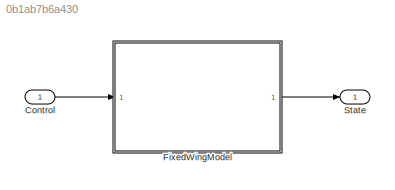
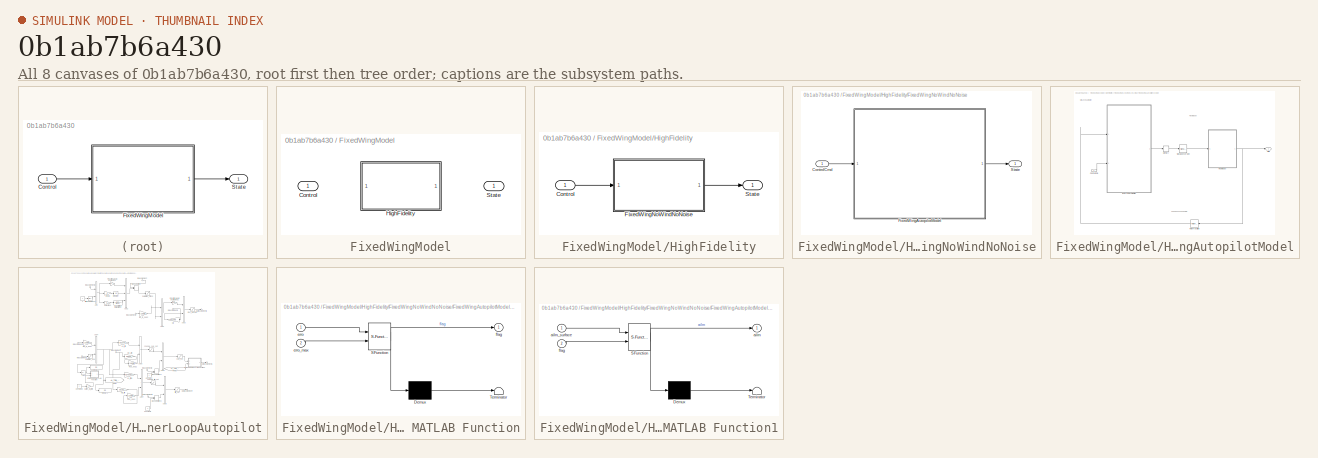
[diagram: thumbnail index - all 8 canvases of the model, root first then tree order]
MODEL slx_0b1ab7b6a430
KIND model
BLOCK [Inport] Control
  BusOutputAsStruct = on
  OutDataTypeStr = Bus: FixedWingControlBus2
BLOCK [SubSystem] FixedWingModel
  Ports = [1, 1]
  RequestExecContextInheritance = off
  Variant = on
BLOCK [Inport] FixedWingModel/Control
BLOCK [SubSystem] FixedWingModel/HighFidelity
  Ports = [1, 1]
  RequestExecContextInheritance = off
  VariantControl = useHighFidelity == 1
BLOCK [Inport] FixedWingModel/HighFidelity/Control
BLOCK [SubSystem] FixedWingModel/HighFidelity/FixedWingNoWindNoNoise
  Ports = [1, 1]
  RequestExecContextInheritance = off
BLOCK [Inport] FixedWingModel/HighFidelity/FixedWingNoWindNoNoise/ControlCmd
  OutDataTypeStr = Bus: FixedWingControlBus2
BLOCK [SubSystem] FixedWingModel/HighFidelity/FixedWingNoWindNoNoise/FixedWingAutopilotModel
  Ports = [1, 1]
  RequestExecContextInheritance = off
BLOCK [Inport] FixedWingModel/HighFidelity/FixedWingNoWindNoNoise/FixedWingAutopilotModel/ControlCmd
  OutDataTypeStr = Bus: FixedWingControlBus2
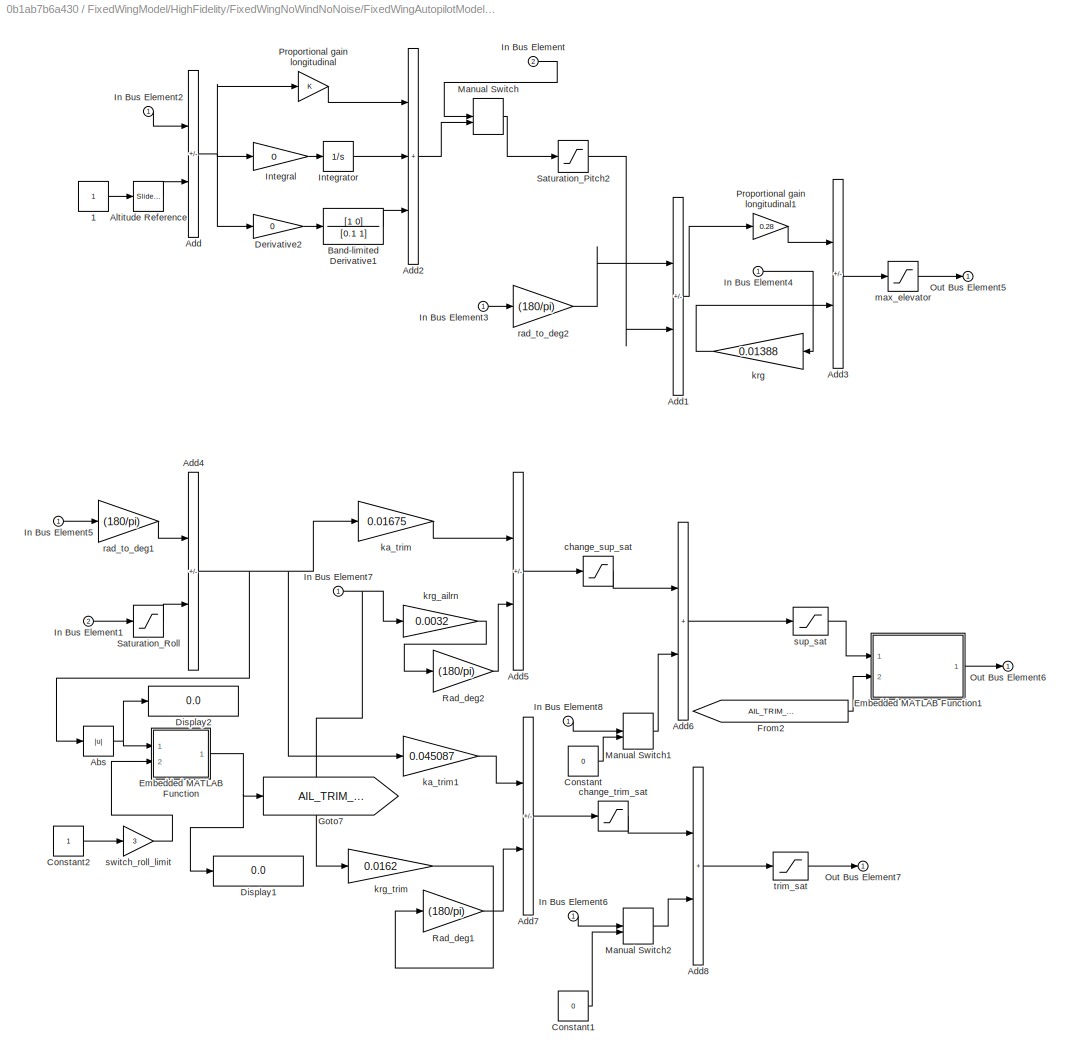
BLOCK [SubSystem] FixedWingModel/HighFidelity/FixedWingNoWindNoNoise/FixedWingAutopilotModel/InnerLoopAutopilot
  Ports = [2, 1]
  RequestExecContextInheritance = off
  TreatAsAtomicUnit = on
BLOCK [Constant] FixedWingModel/HighFidelity/FixedWingNoWindNoNoise/FixedWingAutopilotModel/InnerLoopAutopilot/ 1
BLOCK [Abs] FixedWingModel/HighFidelity/FixedWingNoWindNoNoise/FixedWingAutopilotModel/InnerLoopAutopilot/Abs
  SaturateOnIntegerOverflow = off
BLOCK [Sum] FixedWingModel/HighFidelity/FixedWingNoWindNoNoise/FixedWingAutopilotModel/InnerLoopAutopilot/Add
  IconShape = rectangular
  Inputs = -+
  Ports = [2, 1]
BLOCK [Sum] FixedWingModel/HighFidelity/FixedWingNoWindNoNoise/FixedWingAutopilotModel/InnerLoopAutopilot/Add1
  IconShape = rectangular
  Inputs = -+
  Ports = [2, 1]
BLOCK [Sum] FixedWingModel/HighFidelity/FixedWingNoWindNoNoise/FixedWingAutopilotModel/InnerLoopAutopilot/Add2
  IconShape = rectangular
  Inputs = +++
  Ports = [3, 1]
BLOCK [Sum] FixedWingModel/HighFidelity/FixedWingNoWindNoNoise/FixedWingAutopilotModel/InnerLoopAutopilot/Add3
  IconShape = rectangular
  Inputs = +-
  Ports = [2, 1]
BLOCK [Sum] FixedWingModel/HighFidelity/FixedWingNoWindNoNoise/FixedWingAutopilotModel/InnerLoopAutopilot/Add4
  IconShape = rectangular
  Inputs = -+
  Ports = [2, 1]
BLOCK [Sum] FixedWingModel/HighFidelity/FixedWingNoWindNoNoise/FixedWingAutopilotModel/InnerLoopAutopilot/Add5
  IconShape = rectangular
  Inputs = +-
  Ports = [2, 1]
BLOCK [Sum] FixedWingModel/HighFidelity/FixedWingNoWindNoNoise/FixedWingAutopilotModel/InnerLoopAutopilot/Add6
  IconShape = rectangular
  Ports = [2, 1]
BLOCK [Sum] FixedWingModel/HighFidelity/FixedWingNoWindNoNoise/FixedWingAutopilotModel/InnerLoopAutopilot/Add7
  IconShape = rectangular
  Inputs = +-
  Ports = [2, 1]
BLOCK [Sum] FixedWingModel/HighFidelity/FixedWingNoWindNoNoise/FixedWingAutopilotModel/InnerLoopAutopilot/Add8
  IconShape = rectangular
  Ports = [2, 1]
BLOCK [Reference] FixedWingModel/HighFidelity/FixedWingNoWindNoNoise/FixedWingAutopilotModel/InnerLoopAutopilot/Altitude Reference  REF=simulink/Math
Operations/Slider
Gain
  Ports = [1, 1]
  SourceBlock = simulink/Math\nOperations/Slider\nGain
  SourceProductBaseCode = SL
  SourceType = Slider Gain
BLOCK [TransferFcn] FixedWingModel/HighFidelity/FixedWingNoWindNoNoise/FixedWingAutopilotModel/InnerLoopAutopilot/Band-limited Derivative1
  Denominator = [0.1 1]
  Numerator = [1 0]
BLOCK [Constant] FixedWingModel/HighFidelity/FixedWingNoWindNoNoise/FixedWingAutopilotModel/InnerLoopAutopilot/Constant
  Value = 0
BLOCK [Constant] FixedWingModel/HighFidelity/FixedWingNoWindNoNoise/FixedWingAutopilotModel/InnerLoopAutopilot/Constant1
  Value = 0
BLOCK [Constant] FixedWingModel/HighFidelity/FixedWingNoWindNoNoise/FixedWingAutopilotModel/InnerLoopAutopilot/Constant2
BLOCK [Gain] FixedWingModel/HighFidelity/FixedWingNoWindNoNoise/FixedWingAutopilotModel/InnerLoopAutopilot/Derivative2
  Gain = 0
  OutDataTypeStr = Inherit: Same as input
  ParamDataTypeStr = Inherit: Same as input
  SaturateOnIntegerOverflow = on
BLOCK [Display] FixedWingModel/HighFidelity/FixedWingNoWindNoNoise/FixedWingAutopilotModel/InnerLoopAutopilot/Display1
  Decimation = 1
  Ports = [1]
BLOCK [Display] FixedWingModel/HighFidelity/FixedWingNoWindNoNoise/FixedWingAutopilotModel/InnerLoopAutopilot/Display2
  Decimation = 1
  Ports = [1]
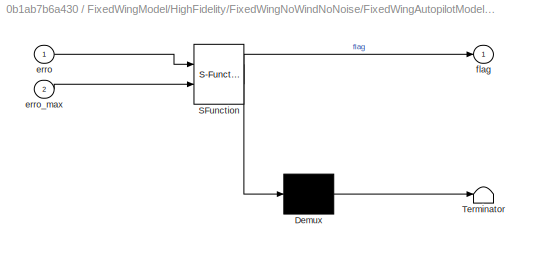
BLOCK [SubSystem] FixedWingModel/HighFidelity/FixedWingNoWindNoNoise/FixedWingAutopilotModel/InnerLoopAutopilot/Embedded MATLAB Function
  ErrorFcn = Stateflow.Translate.translate
  PermitHierarchicalResolution = ExplicitOnly
  Ports = [2, 1]
  RequestExecContextInheritance = off
  SFBlockType = MATLAB Function
  TreatAsAtomicUnit = on
BLOCK [Demux] FixedWingModel/HighFidelity/FixedWingNoWindNoNoise/FixedWingAutopilotModel/InnerLoopAutopilot/Embedded MATLAB Function/ Demux 
  Outputs = 1
  Ports = [1, 1]
BLOCK [S-Function] FixedWingModel/HighFidelity/FixedWingNoWindNoNoise/FixedWingAutopilotModel/InnerLoopAutopilot/Embedded MATLAB Function/ SFunction 
  EnableBusSupport = on
  FunctionName = sf_sfun
  PortCounts = [2 2]
  Ports = [2, 2]
  SFcnIsStateOwnerBlock = off
  SFunctionDeploymentMode = off
  Tag = Stateflow S-Function 1
BLOCK [Terminator] FixedWingModel/HighFidelity/FixedWingNoWindNoNoise/FixedWingAutopilotModel/InnerLoopAutopilot/Embedded MATLAB Function/ Terminator 
BLOCK [Inport] FixedWingModel/HighFidelity/FixedWingNoWindNoNoise/FixedWingAutopilotModel/InnerLoopAutopilot/Embedded MATLAB Function/erro
BLOCK [Inport] FixedWingModel/HighFidelity/FixedWingNoWindNoNoise/FixedWingAutopilotModel/InnerLoopAutopilot/Embedded MATLAB Function/erro_max
  Port = 2
BLOCK [Outport] FixedWingModel/HighFidelity/FixedWingNoWindNoNoise/FixedWingAutopilotModel/InnerLoopAutopilot/Embedded MATLAB Function/flag
BLOCK [SubSystem] FixedWingModel/HighFidelity/FixedWingNoWindNoNoise/FixedWingAutopilotModel/InnerLoopAutopilot/Embedded MATLAB Function1
  ErrorFcn = Stateflow.Translate.translate
  PermitHierarchicalResolution = ExplicitOnly
  Ports = [2, 1]
  RequestExecContextInheritance = off
  SFBlockType = MATLAB Function
  TreatAsAtomicUnit = on
BLOCK [Demux] FixedWingModel/HighFidelity/FixedWingNoWindNoNoise/FixedWingAutopilotModel/InnerLoopAutopilot/Embedded MATLAB Function1/ Demux 
  Outputs = 1
  Ports = [1, 1]
BLOCK [S-Function] FixedWingModel/HighFidelity/FixedWingNoWindNoNoise/FixedWingAutopilotModel/InnerLoopAutopilot/Embedded MATLAB Function1/ SFunction 
  EnableBusSupport = on
  FunctionName = sf_sfun
  PortCounts = [2 2]
  Ports = [2, 2]
  SFcnIsStateOwnerBlock = off
  SFunctionDeploymentMode = off
  Tag = Stateflow S-Function 2
BLOCK [Terminator] FixedWingModel/HighFidelity/FixedWingNoWindNoNoise/FixedWingAutopilotModel/InnerLoopAutopilot/Embedded MATLAB Function1/ Terminator 
BLOCK [Outport] FixedWingModel/HighFidelity/FixedWingNoWindNoNoise/FixedWingAutopilotModel/InnerLoopAutopilot/Embedded MATLAB Function1/ailrn
BLOCK [Inport] FixedWingModel/HighFidelity/FixedWingNoWindNoNoise/FixedWingAutopilotModel/InnerLoopAutopilot/Embedded MATLAB Function1/ailrn_surface
BLOCK [Inport] FixedWingModel/HighFidelity/FixedWingNoWindNoNoise/FixedWingAutopilotModel/InnerLoopAutopilot/Embedded MATLAB Function1/flag
  Port = 2
BLOCK [From] FixedWingModel/HighFidelity/FixedWingNoWindNoNoise/FixedWingAutopilotModel/InnerLoopAutopilot/From2
  CloseFcn = tagdialog Close
  GotoTag = AIL_TRIM_SELECT
  TagVisibility = global
BLOCK [Goto] FixedWingModel/HighFidelity/FixedWingNoWindNoNoise/FixedWingAutopilotModel/InnerLoopAutopilot/Goto7
  GotoTag = AIL_TRIM_SELECT
  TagVisibility = global
BLOCK [Inport] FixedWingModel/HighFidelity/FixedWingNoWindNoNoise/FixedWingAutopilotModel/InnerLoopAutopilot/In Bus Element
  Port = 2
BLOCK [Inport] FixedWingModel/HighFidelity/FixedWingNoWindNoNoise/FixedWingAutopilotModel/InnerLoopAutopilot/In Bus Element1
  Port = 2
BLOCK [Inport] FixedWingModel/HighFidelity/FixedWingNoWindNoNoise/FixedWingAutopilotModel/InnerLoopAutopilot/In Bus Element2
BLOCK [Inport] FixedWingModel/HighFidelity/FixedWingNoWindNoNoise/FixedWingAutopilotModel/InnerLoopAutopilot/In Bus Element3
BLOCK [Inport] FixedWingModel/HighFidelity/FixedWingNoWindNoNoise/FixedWingAutopilotModel/InnerLoopAutopilot/In Bus Element4
BLOCK [Inport] FixedWingModel/HighFidelity/FixedWingNoWindNoNoise/FixedWingAutopilotModel/InnerLoopAutopilot/In Bus Element5
BLOCK [Inport] FixedWingModel/HighFidelity/FixedWingNoWindNoNoise/FixedWingAutopilotModel/InnerLoopAutopilot/In Bus Element6
BLOCK [Inport] FixedWingModel/HighFidelity/FixedWingNoWindNoNoise/FixedWingAutopilotModel/InnerLoopAutopilot/In Bus Element7
BLOCK [Inport] FixedWingModel/HighFidelity/FixedWingNoWindNoNoise/FixedWingAutopilotModel/InnerLoopAutopilot/In Bus Element8
BLOCK [Gain] FixedWingModel/HighFidelity/FixedWingNoWindNoNoise/FixedWingAutopilotModel/InnerLoopAutopilot/Integral
  Gain = 0
  OutDataTypeStr = Inherit: Same as input
  ParamDataTypeStr = Inherit: Same as input
  SaturateOnIntegerOverflow = on
BLOCK [Integrator] FixedWingModel/HighFidelity/FixedWingNoWindNoNoise/FixedWingAutopilotModel/InnerLoopAutopilot/Integrator
  Ports = [1, 1]
BLOCK [ManualSwitch] FixedWingModel/HighFidelity/FixedWingNoWindNoNoise/FixedWingAutopilotModel/InnerLoopAutopilot/Manual Switch
BLOCK [ManualSwitch] FixedWingModel/HighFidelity/FixedWingNoWindNoNoise/FixedWingAutopilotModel/InnerLoopAutopilot/Manual Switch1
  CurrentSetting = 0
BLOCK [ManualSwitch] FixedWingModel/HighFidelity/FixedWingNoWindNoNoise/FixedWingAutopilotModel/InnerLoopAutopilot/Manual Switch2
  CurrentSetting = 0
BLOCK [Outport] FixedWingModel/HighFidelity/FixedWingNoWindNoNoise/FixedWingAutopilotModel/InnerLoopAutopilot/Out Bus Element5
BLOCK [Outport] FixedWingModel/HighFidelity/FixedWingNoWindNoNoise/FixedWingAutopilotModel/InnerLoopAutopilot/Out Bus Element6
BLOCK [Outport] FixedWingModel/HighFidelity/FixedWingNoWindNoNoise/FixedWingAutopilotModel/InnerLoopAutopilot/Out Bus Element7
BLOCK [Gain] FixedWingModel/HighFidelity/FixedWingNoWindNoNoise/FixedWingAutopilotModel/InnerLoopAutopilot/Proportional gain longitudinal
BLOCK [Gain] FixedWingModel/HighFidelity/FixedWingNoWindNoNoise/FixedWingAutopilotModel/InnerLoopAutopilot/Proportional gain longitudinal1
  Gain = 0.28
BLOCK [Gain] FixedWingModel/HighFidelity/FixedWingNoWindNoNoise/FixedWingAutopilotModel/InnerLoopAutopilot/Rad_deg1
  Gain = (180/pi)
BLOCK [Gain] FixedWingModel/HighFidelity/FixedWingNoWindNoNoise/FixedWingAutopilotModel/InnerLoopAutopilot/Rad_deg2
  Gain = (180/pi)
BLOCK [Saturate] FixedWingModel/HighFidelity/FixedWingNoWindNoNoise/FixedWingAutopilotModel/InnerLoopAutopilot/Saturation_Pitch2
  LowerLimit = -20
  NameLocation = top
  UpperLimit = 20
BLOCK [Saturate] FixedWingModel/HighFidelity/FixedWingNoWindNoNoise/FixedWingAutopilotModel/InnerLoopAutopilot/Saturation_Roll
  LowerLimit = -20
  NameLocation = top
  UpperLimit = 20
BLOCK [Saturate] FixedWingModel/HighFidelity/FixedWingNoWindNoNoise/FixedWingAutopilotModel/InnerLoopAutopilot/change_sup_sat
  LowerLimit = -0.1
  UpperLimit = 0.1
BLOCK [Saturate] FixedWingModel/HighFidelity/FixedWingNoWindNoNoise/FixedWingAutopilotModel/InnerLoopAutopilot/change_trim_sat
  LowerLimit = -0.1
  UpperLimit = 0.1
BLOCK [Gain] FixedWingModel/HighFidelity/FixedWingNoWindNoNoise/FixedWingAutopilotModel/InnerLoopAutopilot/ka_trim
  Gain = 0.01675
  OutDataTypeStr = Inherit: Same as input
  ParamDataTypeStr = Inherit: Same as input
BLOCK [Gain] FixedWingModel/HighFidelity/FixedWingNoWindNoNoise/FixedWingAutopilotModel/InnerLoopAutopilot/ka_trim1
  Gain = 0.045087
  OutDataTypeStr = Inherit: Same as input
  ParamDataTypeStr = Inherit: Same as input
BLOCK [Gain] FixedWingModel/HighFidelity/FixedWingNoWindNoNoise/FixedWingAutopilotModel/InnerLoopAutopilot/krg
  Gain = 0.01388
  OutDataTypeStr = Inherit: Same as input
  ParamDataTypeStr = Inherit: Same as input
BLOCK [Gain] FixedWingModel/HighFidelity/FixedWingNoWindNoNoise/FixedWingAutopilotModel/InnerLoopAutopilot/krg_ailrn
  Gain = 0.0032
  NameLocation = top
  OutDataTypeStr = Inherit: Same as input
  ParamDataTypeStr = Inherit: Same as input
BLOCK [Gain] FixedWingModel/HighFidelity/FixedWingNoWindNoNoise/FixedWingAutopilotModel/InnerLoopAutopilot/krg_trim
  Gain = 0.0162
  NameLocation = top
  OutDataTypeStr = Inherit: Same as input
  ParamDataTypeStr = Inherit: Same as input
BLOCK [Saturate] FixedWingModel/HighFidelity/FixedWingNoWindNoNoise/FixedWingAutopilotModel/InnerLoopAutopilot/max_elevator
BLOCK [Gain] FixedWingModel/HighFidelity/FixedWingNoWindNoNoise/FixedWingAutopilotModel/InnerLoopAutopilot/rad_to_deg1
  Gain = (180/pi)
BLOCK [Gain] FixedWingModel/HighFidelity/FixedWingNoWindNoNoise/FixedWingAutopilotModel/InnerLoopAutopilot/rad_to_deg2
  Gain = (180/pi)
BLOCK [Saturate] FixedWingModel/HighFidelity/FixedWingNoWindNoNoise/FixedWingAutopilotModel/InnerLoopAutopilot/sup_sat
  LowerLimit = -0.9
  OutDataTypeStr = double
  OutMax = 1
  OutMin = -1
  RndMeth = Nearest
  UpperLimit = 0.9
BLOCK [Gain] FixedWingModel/HighFidelity/FixedWingNoWindNoNoise/FixedWingAutopilotModel/InnerLoopAutopilot/switch_roll_limit
  Gain = 3
BLOCK [Saturate] FixedWingModel/HighFidelity/FixedWingNoWindNoNoise/FixedWingAutopilotModel/InnerLoopAutopilot/trim_sat
  LowerLimit = -1
  OutDataTypeStr = double
  OutMax = 1
  OutMin = -1
  RndMeth = Nearest
  UpperLimit = 1
BLOCK [Memory] FixedWingModel/HighFidelity/FixedWingNoWindNoNoise/FixedWingAutopilotModel/Memory
BLOCK [ModelReference] FixedWingModel/HighFidelity/FixedWingNoWindNoNoise/FixedWingAutopilotModel/PlantModel
  ModelNameDialog = PlantModel.slx
  ModelReferenceVersion = 3.12
  Ports = [1, 1]
BLOCK [RateTransition] FixedWingModel/HighFidelity/FixedWingNoWindNoNoise/FixedWingAutopilotModel/Rate Transition
  OutPortSampleTime = ap.apSampleTime
BLOCK [SignalConversion] FixedWingModel/HighFidelity/FixedWingNoWindNoNoise/FixedWingAutopilotModel/Signal Conversion
  ConversionOutput = Nonvirtual bus
  OutDataTypeStr = Bus: ctrlCmdsBus
  OverrideOpt = off
BLOCK [Outport] FixedWingModel/HighFidelity/FixedWingNoWindNoNoise/FixedWingAutopilotModel/State
  OutDataTypeStr = Bus: FixedWingStateBus
BLOCK [Outport] FixedWingModel/HighFidelity/FixedWingNoWindNoNoise/State
  VectorParamsAs1DForOutWhenUnconnected = off
BLOCK [Outport] FixedWingModel/HighFidelity/State
  VectorParamsAs1DForOutWhenUnconnected = off
BLOCK [Outport] FixedWingModel/State
  VectorParamsAs1DForOutWhenUnconnected = off
BLOCK [Outport] State
  BusOutputAsStruct = on
  OutDataTypeStr = Bus: FixedWingStateBus
  VectorParamsAs1DForOutWhenUnconnected = off
ANNOTATION FixedWingModel/HighFidelity/FixedWingNoWindNoNoise/FixedWingAutopilotModel: Feedback and Sample
ANNOTATION FixedWingModel/HighFidelity/FixedWingNoWindNoNoise/FixedWingAutopilotModel: Mid Level Autopilot
ANNOTATION FixedWingModel/HighFidelity/FixedWingNoWindNoNoise/FixedWingAutopilotModel: Plant Model
LINE Control:1 -> FixedWingModel:1
LINE FixedWingModel/HighFidelity/Control:1 -> FixedWingModel/HighFidelity/FixedWingNoWindNoNoise:1
LINE FixedWingModel/HighFidelity/FixedWingNoWindNoNoise/ControlCmd:1 -> FixedWingModel/HighFidelity/FixedWingNoWindNoNoise/FixedWingAutopilotModel:1
LINE FixedWingModel/HighFidelity/FixedWingNoWindNoNoise/FixedWingAutopilotModel/ControlCmd:1 -> FixedWingModel/HighFidelity/FixedWingNoWindNoNoise/FixedWingAutopilotModel/InnerLoopAutopilot:2
LINE FixedWingModel/HighFidelity/FixedWingNoWindNoNoise/FixedWingAutopilotModel/InnerLoopAutopilot/ 1:1 -> FixedWingModel/HighFidelity/FixedWingNoWindNoNoise/FixedWingAutopilotModel/InnerLoopAutopilot/Altitude Reference:1
NET FixedWingModel/HighFidelity/FixedWingNoWindNoNoise/FixedWingAutopilotModel/InnerLoopAutopilot/Abs:1 -> FixedWingModel/HighFidelity/FixedWingNoWindNoNoise/FixedWingAutopilotModel/InnerLoopAutopilot/Display2:1, FixedWingModel/HighFidelity/FixedWingNoWindNoNoise/FixedWingAutopilotModel/InnerLoopAutopilot/Embedded MATLAB Function:1
LINE FixedWingModel/HighFidelity/FixedWingNoWindNoNoise/FixedWingAutopilotModel/InnerLoopAutopilot/Add1:1 -> FixedWingModel/HighFidelity/FixedWingNoWindNoNoise/FixedWingAutopilotModel/InnerLoopAutopilot/Proportional gain longitudinal1:1
LINE FixedWingModel/HighFidelity/FixedWingNoWindNoNoise/FixedWingAutopilotModel/InnerLoopAutopilot/Add2:1 -> FixedWingModel/HighFidelity/FixedWingNoWindNoNoise/FixedWingAutopilotModel/InnerLoopAutopilot/Manual Switch:2
LINE FixedWingModel/HighFidelity/FixedWingNoWindNoNoise/FixedWingAutopilotModel/InnerLoopAutopilot/Add3:1 -> FixedWingModel/HighFidelity/FixedWingNoWindNoNoise/FixedWingAutopilotModel/InnerLoopAutopilot/max_elevator:1
NET FixedWingModel/HighFidelity/FixedWingNoWindNoNoise/FixedWingAutopilotModel/InnerLoopAutopilot/Add4:1 -> FixedWingModel/HighFidelity/FixedWingNoWindNoNoise/FixedWingAutopilotModel/InnerLoopAutopilot/Abs:1, FixedWingModel/HighFidelity/FixedWingNoWindNoNoise/FixedWingAutopilotModel/InnerLoopAutopilot/ka_trim1:1, FixedWingModel/HighFidelity/FixedWingNoWindNoNoise/FixedWingAutopilotModel/InnerLoopAutopilot/ka_trim:1
LINE FixedWingModel/HighFidelity/FixedWingNoWindNoNoise/FixedWingAutopilotModel/InnerLoopAutopilot/Add5:1 -> FixedWingModel/HighFidelity/FixedWingNoWindNoNoise/FixedWingAutopilotModel/InnerLoopAutopilot/change_sup_sat:1
LINE FixedWingModel/HighFidelity/FixedWingNoWindNoNoise/FixedWingAutopilotModel/InnerLoopAutopilot/Add6:1 -> FixedWingModel/HighFidelity/FixedWingNoWindNoNoise/FixedWingAutopilotModel/InnerLoopAutopilot/sup_sat:1
LINE FixedWingModel/HighFidelity/FixedWingNoWindNoNoise/FixedWingAutopilotModel/InnerLoopAutopilot/Add7:1 -> FixedWingModel/HighFidelity/FixedWingNoWindNoNoise/FixedWingAutopilotModel/InnerLoopAutopilot/change_trim_sat:1
LINE FixedWingModel/HighFidelity/FixedWingNoWindNoNoise/FixedWingAutopilotModel/InnerLoopAutopilot/Add8:1 -> FixedWingModel/HighFidelity/FixedWingNoWindNoNoise/FixedWingAutopilotModel/InnerLoopAutopilot/trim_sat:1
NET FixedWingModel/HighFidelity/FixedWingNoWindNoNoise/FixedWingAutopilotModel/InnerLoopAutopilot/Add:1 -> FixedWingModel/HighFidelity/FixedWingNoWindNoNoise/FixedWingAutopilotModel/InnerLoopAutopilot/Derivative2:1, FixedWingModel/HighFidelity/FixedWingNoWindNoNoise/FixedWingAutopilotModel/InnerLoopAutopilot/Integral:1, FixedWingModel/HighFidelity/FixedWingNoWindNoNoise/FixedWingAutopilotModel/InnerLoopAutopilot/Proportional gain longitudinal:1
LINE FixedWingModel/HighFidelity/FixedWingNoWindNoNoise/FixedWingAutopilotModel/InnerLoopAutopilot/Altitude Reference:1 -> FixedWingModel/HighFidelity/FixedWingNoWindNoNoise/FixedWingAutopilotModel/InnerLoopAutopilot/Add:2
LINE FixedWingModel/HighFidelity/FixedWingNoWindNoNoise/FixedWingAutopilotModel/InnerLoopAutopilot/Band-limited Derivative1:1 -> FixedWingModel/HighFidelity/FixedWingNoWindNoNoise/FixedWingAutopilotModel/InnerLoopAutopilot/Add2:3
LINE FixedWingModel/HighFidelity/FixedWingNoWindNoNoise/FixedWingAutopilotModel/InnerLoopAutopilot/Constant1:1 -> FixedWingModel/HighFidelity/FixedWingNoWindNoNoise/FixedWingAutopilotModel/InnerLoopAutopilot/Manual Switch2:2
LINE FixedWingModel/HighFidelity/FixedWingNoWindNoNoise/FixedWingAutopilotModel/InnerLoopAutopilot/Constant2:1 -> FixedWingModel/HighFidelity/FixedWingNoWindNoNoise/FixedWingAutopilotModel/InnerLoopAutopilot/switch_roll_limit:1
LINE FixedWingModel/HighFidelity/FixedWingNoWindNoNoise/FixedWingAutopilotModel/InnerLoopAutopilot/Constant:1 -> FixedWingModel/HighFidelity/FixedWingNoWindNoNoise/FixedWingAutopilotModel/InnerLoopAutopilot/Manual Switch1:2
LINE FixedWingModel/HighFidelity/FixedWingNoWindNoNoise/FixedWingAutopilotModel/InnerLoopAutopilot/Derivative2:1 -> FixedWingModel/HighFidelity/FixedWingNoWindNoNoise/FixedWingAutopilotModel/InnerLoopAutopilot/Band-limited Derivative1:1
LINE FixedWingModel/HighFidelity/FixedWingNoWindNoNoise/FixedWingAutopilotModel/InnerLoopAutopilot/Embedded MATLAB Function1:1 -> FixedWingModel/HighFidelity/FixedWingNoWindNoNoise/FixedWingAutopilotModel/InnerLoopAutopilot/Out Bus Element6:1
NET FixedWingModel/HighFidelity/FixedWingNoWindNoNoise/FixedWingAutopilotModel/InnerLoopAutopilot/Embedded MATLAB Function:1 -> FixedWingModel/HighFidelity/FixedWingNoWindNoNoise/FixedWingAutopilotModel/InnerLoopAutopilot/Display1:1, FixedWingModel/HighFidelity/FixedWingNoWindNoNoise/FixedWingAutopilotModel/InnerLoopAutopilot/Goto7:1
LINE FixedWingModel/HighFidelity/FixedWingNoWindNoNoise/FixedWingAutopilotModel/InnerLoopAutopilot/From2:1 -> FixedWingModel/HighFidelity/FixedWingNoWindNoNoise/FixedWingAutopilotModel/InnerLoopAutopilot/Embedded MATLAB Function1:2
LINE FixedWingModel/HighFidelity/FixedWingNoWindNoNoise/FixedWingAutopilotModel/InnerLoopAutopilot/In Bus Element1:1 -> FixedWingModel/HighFidelity/FixedWingNoWindNoNoise/FixedWingAutopilotModel/InnerLoopAutopilot/Saturation_Roll:1
LINE FixedWingModel/HighFidelity/FixedWingNoWindNoNoise/FixedWingAutopilotModel/InnerLoopAutopilot/In Bus Element2:1 -> FixedWingModel/HighFidelity/FixedWingNoWindNoNoise/FixedWingAutopilotModel/InnerLoopAutopilot/Add:1
LINE FixedWingModel/HighFidelity/FixedWingNoWindNoNoise/FixedWingAutopilotModel/InnerLoopAutopilot/In Bus Element3:1 -> FixedWingModel/HighFidelity/FixedWingNoWindNoNoise/FixedWingAutopilotModel/InnerLoopAutopilot/rad_to_deg2:1
LINE FixedWingModel/HighFidelity/FixedWingNoWindNoNoise/FixedWingAutopilotModel/InnerLoopAutopilot/In Bus Element4:1 -> FixedWingModel/HighFidelity/FixedWingNoWindNoNoise/FixedWingAutopilotModel/InnerLoopAutopilot/krg:1
LINE FixedWingModel/HighFidelity/FixedWingNoWindNoNoise/FixedWingAutopilotModel/InnerLoopAutopilot/In Bus Element5:1 -> FixedWingModel/HighFidelity/FixedWingNoWindNoNoise/FixedWingAutopilotModel/InnerLoopAutopilot/rad_to_deg1:1
LINE FixedWingModel/HighFidelity/FixedWingNoWindNoNoise/FixedWingAutopilotModel/InnerLoopAutopilot/In Bus Element6:1 -> FixedWingModel/HighFidelity/FixedWingNoWindNoNoise/FixedWingAutopilotModel/InnerLoopAutopilot/Manual Switch2:1
NET FixedWingModel/HighFidelity/FixedWingNoWindNoNoise/FixedWingAutopilotModel/InnerLoopAutopilot/In Bus Element7:1 -> FixedWingModel/HighFidelity/FixedWingNoWindNoNoise/FixedWingAutopilotModel/InnerLoopAutopilot/krg_ailrn:1, FixedWingModel/HighFidelity/FixedWingNoWindNoNoise/FixedWingAutopilotModel/InnerLoopAutopilot/krg_trim:1
LINE FixedWingModel/HighFidelity/FixedWingNoWindNoNoise/FixedWingAutopilotModel/InnerLoopAutopilot/In Bus Element8:1 -> FixedWingModel/HighFidelity/FixedWingNoWindNoNoise/FixedWingAutopilotModel/InnerLoopAutopilot/Manual Switch1:1
LINE FixedWingModel/HighFidelity/FixedWingNoWindNoNoise/FixedWingAutopilotModel/InnerLoopAutopilot/In Bus Element:1 -> FixedWingModel/HighFidelity/FixedWingNoWindNoNoise/FixedWingAutopilotModel/InnerLoopAutopilot/Manual Switch:1
LINE FixedWingModel/HighFidelity/FixedWingNoWindNoNoise/FixedWingAutopilotModel/InnerLoopAutopilot/Integral:1 -> FixedWingModel/HighFidelity/FixedWingNoWindNoNoise/FixedWingAutopilotModel/InnerLoopAutopilot/Integrator:1
LINE FixedWingModel/HighFidelity/FixedWingNoWindNoNoise/FixedWingAutopilotModel/InnerLoopAutopilot/Integrator:1 -> FixedWingModel/HighFidelity/FixedWingNoWindNoNoise/FixedWingAutopilotModel/InnerLoopAutopilot/Add2:2
LINE FixedWingModel/HighFidelity/FixedWingNoWindNoNoise/FixedWingAutopilotModel/InnerLoopAutopilot/Manual Switch1:1 -> FixedWingModel/HighFidelity/FixedWingNoWindNoNoise/FixedWingAutopilotModel/InnerLoopAutopilot/Add6:2
LINE FixedWingModel/HighFidelity/FixedWingNoWindNoNoise/FixedWingAutopilotModel/InnerLoopAutopilot/Manual Switch2:1 -> FixedWingModel/HighFidelity/FixedWingNoWindNoNoise/FixedWingAutopilotModel/InnerLoopAutopilot/Add8:2
LINE FixedWingModel/HighFidelity/FixedWingNoWindNoNoise/FixedWingAutopilotModel/InnerLoopAutopilot/Manual Switch:1 -> FixedWingModel/HighFidelity/FixedWingNoWindNoNoise/FixedWingAutopilotModel/InnerLoopAutopilot/Saturation_Pitch2:1
LINE FixedWingModel/HighFidelity/FixedWingNoWindNoNoise/FixedWingAutopilotModel/InnerLoopAutopilot/Proportional gain longitudinal1:1 -> FixedWingModel/HighFidelity/FixedWingNoWindNoNoise/FixedWingAutopilotModel/InnerLoopAutopilot/Add3:1
LINE FixedWingModel/HighFidelity/FixedWingNoWindNoNoise/FixedWingAutopilotModel/InnerLoopAutopilot/Proportional gain longitudinal:1 -> FixedWingModel/HighFidelity/FixedWingNoWindNoNoise/FixedWingAutopilotModel/InnerLoopAutopilot/Add2:1
LINE FixedWingModel/HighFidelity/FixedWingNoWindNoNoise/FixedWingAutopilotModel/InnerLoopAutopilot/Rad_deg1:1 -> FixedWingModel/HighFidelity/FixedWingNoWindNoNoise/FixedWingAutopilotModel/InnerLoopAutopilot/Add7:2
LINE FixedWingModel/HighFidelity/FixedWingNoWindNoNoise/FixedWingAutopilotModel/InnerLoopAutopilot/Rad_deg2:1 -> FixedWingModel/HighFidelity/FixedWingNoWindNoNoise/FixedWingAutopilotModel/InnerLoopAutopilot/Add5:2
LINE FixedWingModel/HighFidelity/FixedWingNoWindNoNoise/FixedWingAutopilotModel/InnerLoopAutopilot/Saturation_Pitch2:1 -> FixedWingModel/HighFidelity/FixedWingNoWindNoNoise/FixedWingAutopilotModel/InnerLoopAutopilot/Add1:2
LINE FixedWingModel/HighFidelity/FixedWingNoWindNoNoise/FixedWingAutopilotModel/InnerLoopAutopilot/Saturation_Roll:1 -> FixedWingModel/HighFidelity/FixedWingNoWindNoNoise/FixedWingAutopilotModel/InnerLoopAutopilot/Add4:2
LINE FixedWingModel/HighFidelity/FixedWingNoWindNoNoise/FixedWingAutopilotModel/InnerLoopAutopilot/change_sup_sat:1 -> FixedWingModel/HighFidelity/FixedWingNoWindNoNoise/FixedWingAutopilotModel/InnerLoopAutopilot/Add6:1
LINE FixedWingModel/HighFidelity/FixedWingNoWindNoNoise/FixedWingAutopilotModel/InnerLoopAutopilot/change_trim_sat:1 -> FixedWingModel/HighFidelity/FixedWingNoWindNoNoise/FixedWingAutopilotModel/InnerLoopAutopilot/Add8:1
LINE FixedWingModel/HighFidelity/FixedWingNoWindNoNoise/FixedWingAutopilotModel/InnerLoopAutopilot/ka_trim1:1 -> FixedWingModel/HighFidelity/FixedWingNoWindNoNoise/FixedWingAutopilotModel/InnerLoopAutopilot/Add7:1
LINE FixedWingModel/HighFidelity/FixedWingNoWindNoNoise/FixedWingAutopilotModel/InnerLoopAutopilot/ka_trim:1 -> FixedWingModel/HighFidelity/FixedWingNoWindNoNoise/FixedWingAutopilotModel/InnerLoopAutopilot/Add5:1
LINE FixedWingModel/HighFidelity/FixedWingNoWindNoNoise/FixedWingAutopilotModel/InnerLoopAutopilot/krg:1 -> FixedWingModel/HighFidelity/FixedWingNoWindNoNoise/FixedWingAutopilotModel/InnerLoopAutopilot/Add3:2
LINE FixedWingModel/HighFidelity/FixedWingNoWindNoNoise/FixedWingAutopilotModel/InnerLoopAutopilot/krg_ailrn:1 -> FixedWingModel/HighFidelity/FixedWingNoWindNoNoise/FixedWingAutopilotModel/InnerLoopAutopilot/Rad_deg2:1
LINE FixedWingModel/HighFidelity/FixedWingNoWindNoNoise/FixedWingAutopilotModel/InnerLoopAutopilot/krg_trim:1 -> FixedWingModel/HighFidelity/FixedWingNoWindNoNoise/FixedWingAutopilotModel/InnerLoopAutopilot/Rad_deg1:1
LINE FixedWingModel/HighFidelity/FixedWingNoWindNoNoise/FixedWingAutopilotModel/InnerLoopAutopilot/max_elevator:1 -> FixedWingModel/HighFidelity/FixedWingNoWindNoNoise/FixedWingAutopilotModel/InnerLoopAutopilot/Out Bus Element5:1
LINE FixedWingModel/HighFidelity/FixedWingNoWindNoNoise/FixedWingAutopilotModel/InnerLoopAutopilot/rad_to_deg1:1 -> FixedWingModel/HighFidelity/FixedWingNoWindNoNoise/FixedWingAutopilotModel/InnerLoopAutopilot/Add4:1
LINE FixedWingModel/HighFidelity/FixedWingNoWindNoNoise/FixedWingAutopilotModel/InnerLoopAutopilot/rad_to_deg2:1 -> FixedWingModel/HighFidelity/FixedWingNoWindNoNoise/FixedWingAutopilotModel/InnerLoopAutopilot/Add1:1
LINE FixedWingModel/HighFidelity/FixedWingNoWindNoNoise/FixedWingAutopilotModel/InnerLoopAutopilot/sup_sat:1 -> FixedWingModel/HighFidelity/FixedWingNoWindNoNoise/FixedWingAutopilotModel/InnerLoopAutopilot/Embedded MATLAB Function1:1
LINE FixedWingModel/HighFidelity/FixedWingNoWindNoNoise/FixedWingAutopilotModel/InnerLoopAutopilot/switch_roll_limit:1 -> FixedWingModel/HighFidelity/FixedWingNoWindNoNoise/FixedWingAutopilotModel/InnerLoopAutopilot/Embedded MATLAB Function:2
LINE FixedWingModel/HighFidelity/FixedWingNoWindNoNoise/FixedWingAutopilotModel/InnerLoopAutopilot/trim_sat:1 -> FixedWingModel/HighFidelity/FixedWingNoWindNoNoise/FixedWingAutopilotModel/InnerLoopAutopilot/Out Bus Element7:1
LINE FixedWingModel/HighFidelity/FixedWingNoWindNoNoise/FixedWingAutopilotModel/InnerLoopAutopilot:1 -> FixedWingModel/HighFidelity/FixedWingNoWindNoNoise/FixedWingAutopilotModel/Memory:1
LINE FixedWingModel/HighFidelity/FixedWingNoWindNoNoise/FixedWingAutopilotModel/Memory:1 -> FixedWingModel/HighFidelity/FixedWingNoWindNoNoise/FixedWingAutopilotModel/Signal Conversion:1
NET FixedWingModel/HighFidelity/FixedWingNoWindNoNoise/FixedWingAutopilotModel/PlantModel:1 -> FixedWingModel/HighFidelity/FixedWingNoWindNoNoise/FixedWingAutopilotModel/Rate Transition:1, FixedWingModel/HighFidelity/FixedWingNoWindNoNoise/FixedWingAutopilotModel/State:1
LINE FixedWingModel/HighFidelity/FixedWingNoWindNoNoise/FixedWingAutopilotModel/Rate Transition:1 -> FixedWingModel/HighFidelity/FixedWingNoWindNoNoise/FixedWingAutopilotModel/InnerLoopAutopilot:1
LINE FixedWingModel/HighFidelity/FixedWingNoWindNoNoise/FixedWingAutopilotModel/Signal Conversion:1 -> FixedWingModel/HighFidelity/FixedWingNoWindNoNoise/FixedWingAutopilotModel/PlantModel:1
LINE FixedWingModel/HighFidelity/FixedWingNoWindNoNoise/FixedWingAutopilotModel:1 -> FixedWingModel/HighFidelity/FixedWingNoWindNoNoise/State:1
LINE FixedWingModel/HighFidelity/FixedWingNoWindNoNoise:1 -> FixedWingModel/HighFidelity/State:1
LINE FixedWingModel:1 -> State:1
note: NET lines group one-source signal fan-out (src -> all destinations, sorted); 1:1 wires keep LINE
CHART FixedWingModel/HighFidelity/FixedWingNoWindNoNoise/FixedWingAutopilotModel/InnerLoopAutopilot/Embedded
MATLAB Function states=1 transitions=1
  STATE_LABEL 'eML_blk_kernel()'
  STATE_LABEL 'SCRIPT:\nfunction flag = fcn(erro,erro_max)\n% This block supports the Embedded MATLAB subset.\n% See the help menu for details. \nif(erro<erro_max)\n    flag = 1;\nelse\n    flag = 2;\nend;'
CHART FixedWingModel/HighFidelity/FixedWingNoWindNoNoise/FixedWingAutopilotModel/InnerLoopAutopilot/Embedded
MATLAB Function1 states=1 transitions=1
  STATE_LABEL 'eML_blk_kernel()'
  STATE_LABEL 'SCRIPT:\nfunction ailrn   = fcn_elev(ailrn_surface,flag)\n% This block supports the Embedded MATLAB subset.\n% See the help menu for details. \n\nif(flag == 1)\n   \n    ailrn = 0;\nelse\n  \n   ailrn = ailrn_surface;\nend'
CHART  states=0 transitions=0
CHART  states=0 transitions=0
